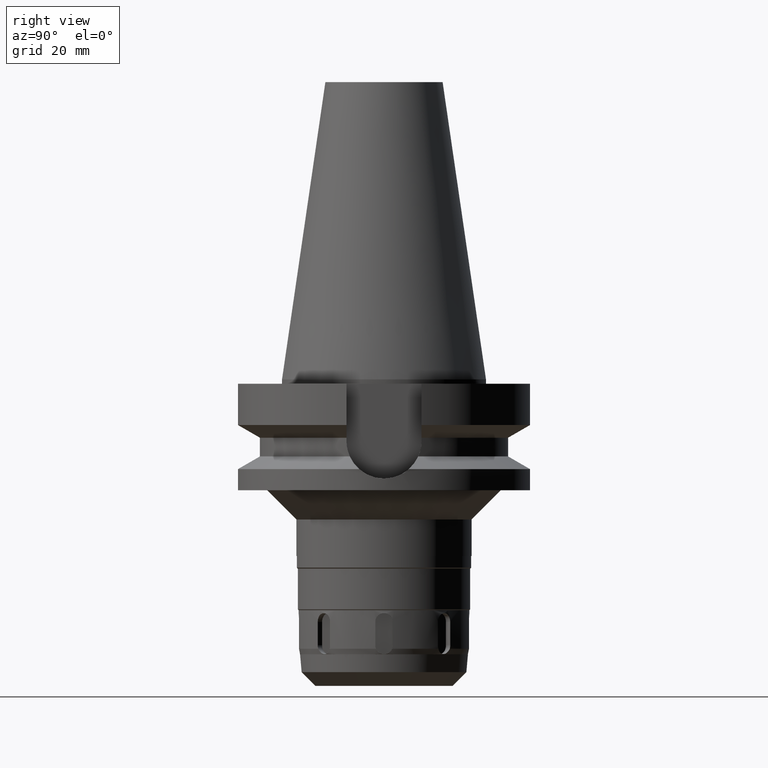
[diagram: clean part render]
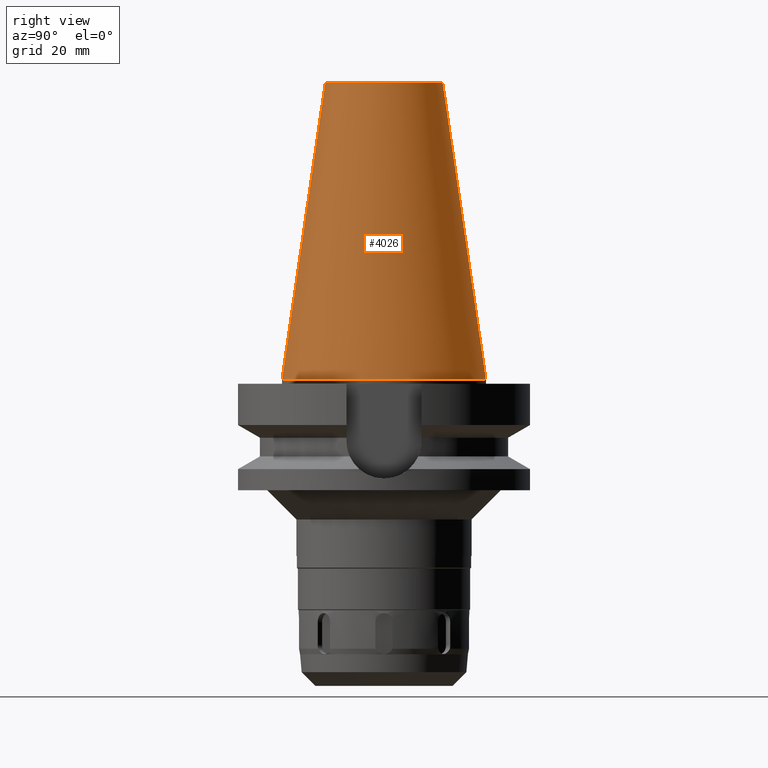
[diagram: same view with one face highlighted and labeled with its STEP entity id]
A machine part, right view. The second image highlights one B-rep face of the part: STEP entity #4026.
In plain terms, the highlighted conical surface has half-angle 8.297 deg.
Its self-contained STEP definition (entity closure, byte-faithful):
#1936=DIRECTION('',(0.E0,-1.443043893539E-1,-9.895333461856E-1));
#1937=VECTOR('',#1936,1.028767755957E2);
#1938=CARTESIAN_POINT('',(0.E0,-2.007942971896E1,1.018E2));
#1939=LINE('',#1938,#1937);
#1951=DIRECTION('',(0.E0,1.443043893539E-1,-9.895333461856E-1));
#1952=VECTOR('',#1951,1.028767755957E2);
#1953=CARTESIAN_POINT('',(0.E0,2.007942971896E1,1.018E2));
#1954=LINE('',#1953,#1952);
#1958=CARTESIAN_POINT('',(0.E0,1.847992019913E-14,3.979039320257E-13));
#1959=DIRECTION('',(0.E0,0.E0,-1.E0));
#1960=DIRECTION('',(0.E0,1.E0,0.E0));
#1961=AXIS2_PLACEMENT_3D('',#1958,#1959,#1960);
#1974=CARTESIAN_POINT('',(0.E0,1.847992019913E-14,1.018E2));
#1975=DIRECTION('',(0.E0,0.E0,-1.E0));
#1976=DIRECTION('',(0.E0,1.E0,0.E0));
#1977=AXIS2_PLACEMENT_3D('',#1974,#1975,#1976);
#2697=CARTESIAN_POINT('',(0.E0,3.4925E1,4.902744876745E-13));
#2698=VERTEX_POINT('',#2697);
#2699=CARTESIAN_POINT('',(0.E0,-3.4925E1,4.902744876745E-13));
#2700=VERTEX_POINT('',#2699);
#2701=CARTESIAN_POINT('',(0.E0,2.007942971896E1,1.018E2));
#2702=VERTEX_POINT('',#2701);
#2703=CARTESIAN_POINT('',(0.E0,-2.007942971896E1,1.018E2));
#2704=VERTEX_POINT('',#2703);
#4014=CARTESIAN_POINT('',(0.E0,1.847992019913E-14,5.09E1));
#4015=DIRECTION('',(0.E0,0.E0,-1.E0));
#4016=DIRECTION('',(0.E0,-1.E0,0.E0));
#4017=AXIS2_PLACEMENT_3D('',#4014,#4015,#4016);
#4018=CONICAL_SURFACE('',#4017,2.750221485948E1,8.297E0);
#4019=ORIENTED_EDGE('',*,*,#4004,.T.);
#4020=ORIENTED_EDGE('',*,*,#3981,.T.);
#4021=ORIENTED_EDGE('',*,*,#4008,.F.);
#4023=ORIENTED_EDGE('',*,*,#4022,.F.);
#4024=EDGE_LOOP('',(#4019,#4020,#4021,#4023));
#4025=FACE_OUTER_BOUND('',#4024,.F.);
#1962=CIRCLE('',#1961,3.4925E1);
#1978=CIRCLE('',#1977,2.007942971896E1);
#3981=EDGE_CURVE('',#2698,#2700,#1962,.T.);
#4004=EDGE_CURVE('',#2702,#2698,#1954,.T.);
#4008=EDGE_CURVE('',#2704,#2700,#1939,.T.);
#4022=EDGE_CURVE('',#2702,#2704,#1978,.T.);
#4026=ADVANCED_FACE('',(#4025),#4018,.T.);